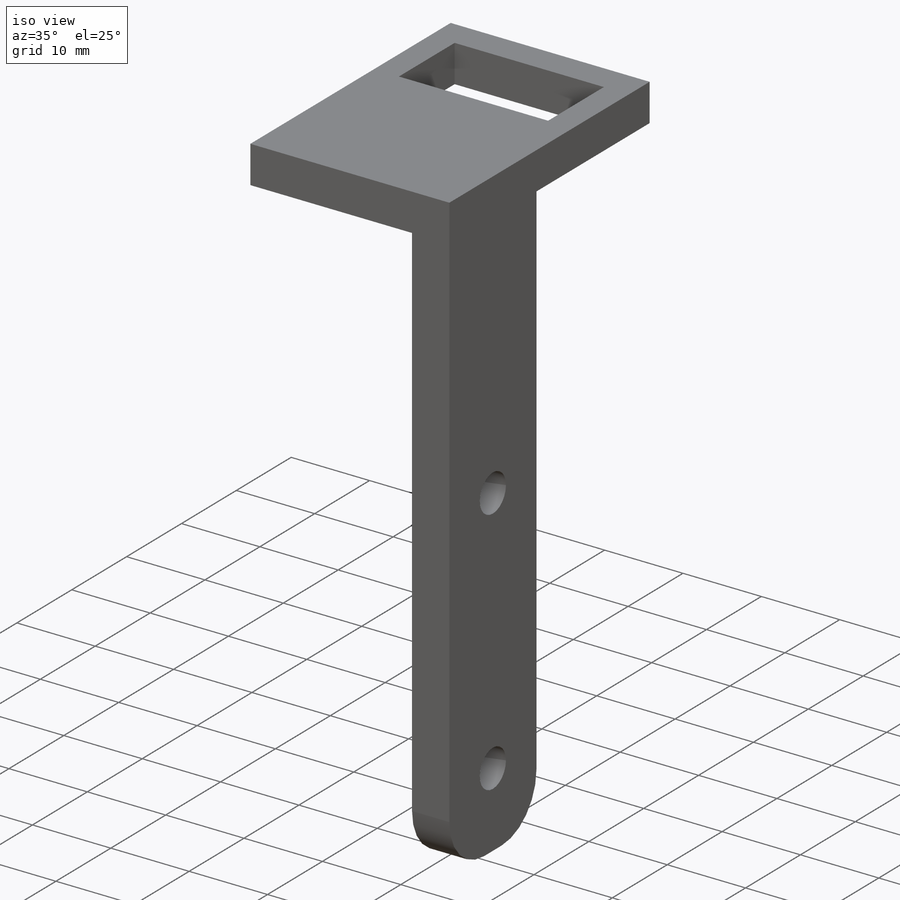
[diagram: iso view]
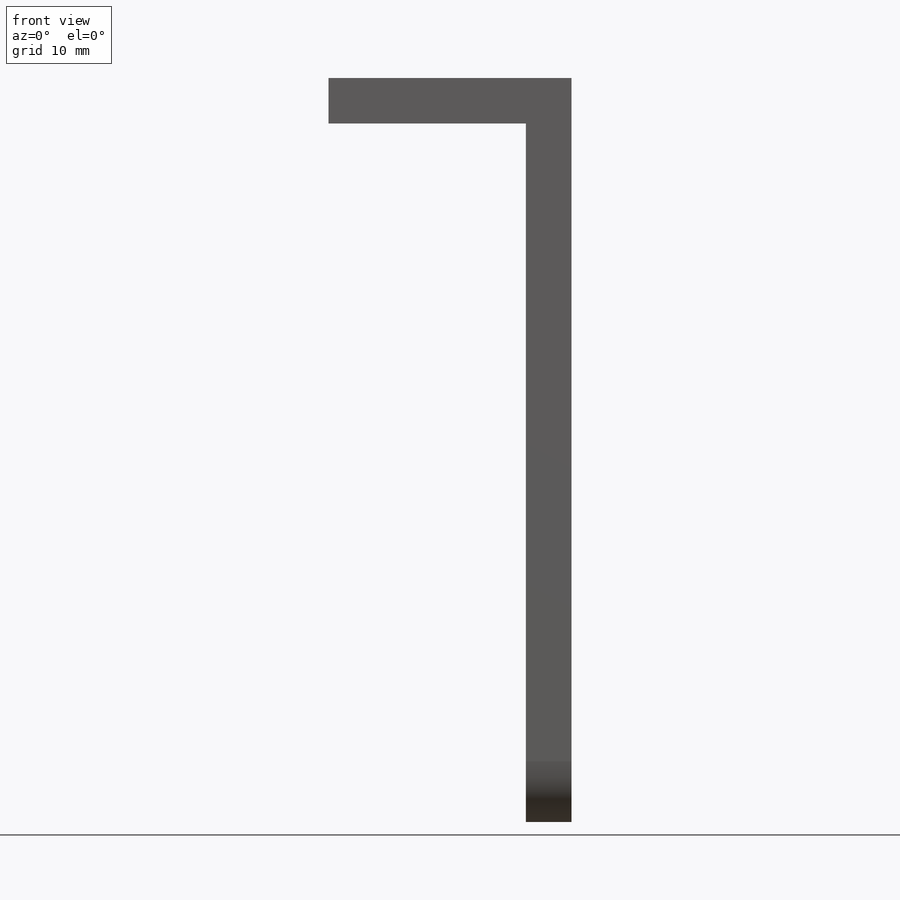
[diagram: front view]
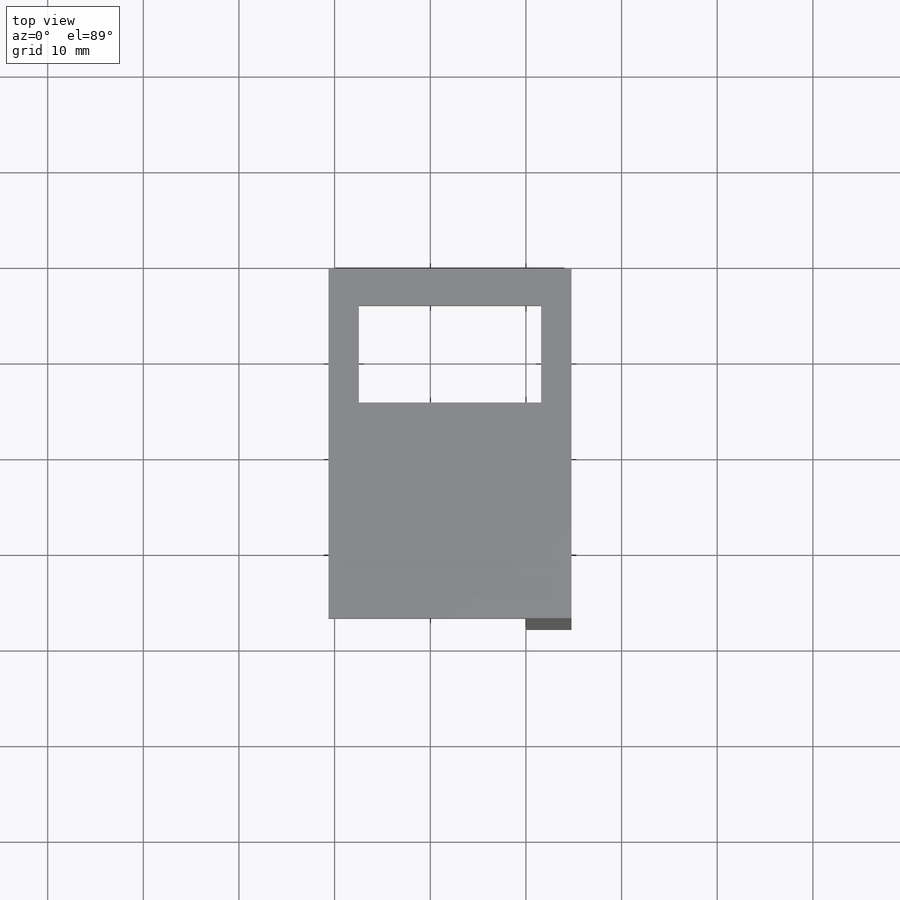
[diagram: top view]
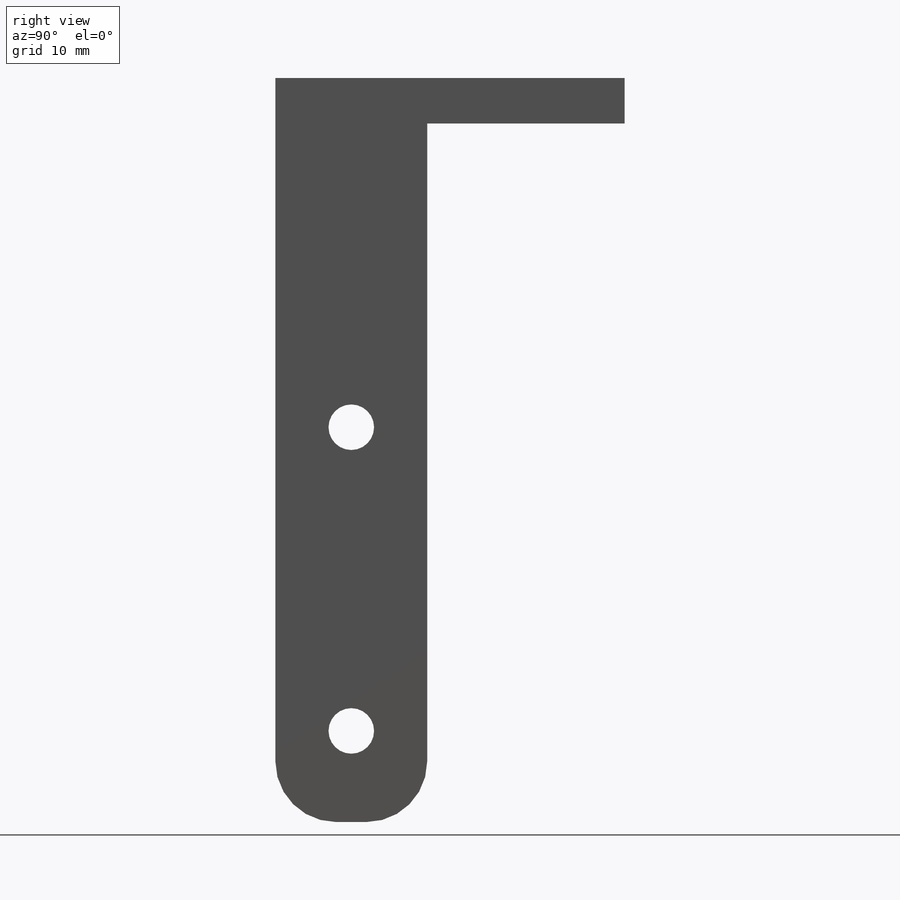
[diagram: right view]
SOLIDWORKS PART (.sldprt)
format: sldprt  version: not decoded by parser v0  size: 211,456 bytes
history: native  units: mm
features: sketch x5, extrude x2, material x1, hole x1, fillet x1, cut_extrude x1 (+12 scaffold rows collapsed)
feature tree (23):
  scaffold x12  (default folders/planes/origin — collapsed)
  material  "Plain Carbon Steel"
  sketch  "Sketch1"  dims[c1.D3=~8.560191mm c1.D1=15.875mm c1.D2=7.9375mm c2.D3=50.8mm c2.D4=25.4mm c2.D5=22.225mm]
  extrude  "Boss-Extrude1"  Depth=4.7625mm
  hole  "3/16 (0.1875) Diameter Hole1"  Diameter=4.7625mm Depth=4.7625mm
  sketch  "Sketch3"  dims[D1=31.75mm D2=50.8mm D3=9.525mm]
  sketch  "Sketch4"  dims[hole-wizard template sketch: 60 standard entries collapsed; hole parameters kept: c18.Thru Hole Depth=4.7625mm]
  sketch  "Sketch5"  dims[D2=36.5125mm D3=25.4mm D1=0.0mm]
  extrude  "Boss-Extrude2"  Depth=4.7625mm
  fillet  "Fillet1"  Radius=6.35mm
  sketch  "Sketch7"  dims[D1=10.16mm D2=19.05mm D3=3.175mm D4=13.97mm]
  cut_extrude  "Cut-Extrude1"  [1 undecoded]
decode coverage: 9 of 10 modeling features carry decoded parameters
note: ~ marks probable driven/reference dimensions
note: 1 parameter value undecoded
note: suppression state not decoded; provenance and decode notes live in map.json
